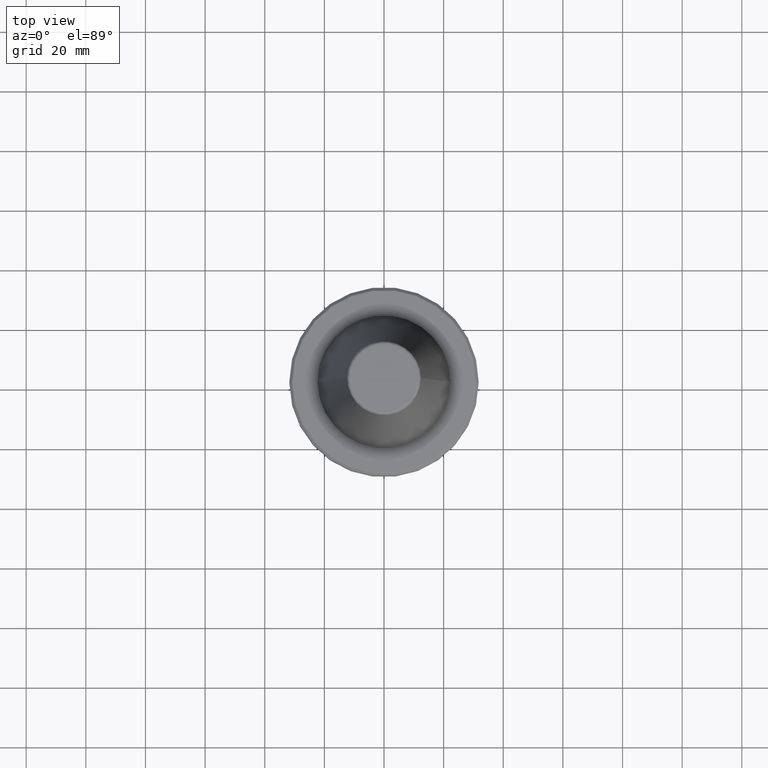
[diagram: clean part render]
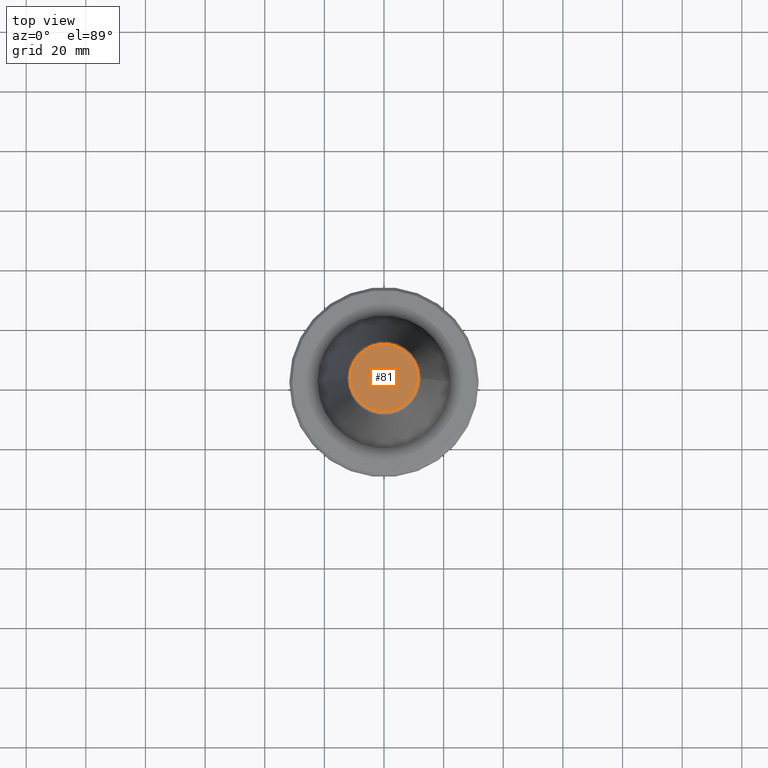
[diagram: same view with one face highlighted and labeled with its STEP entity id]
A machine part, top view. The second image highlights one B-rep face of the part: STEP entity #81.
In plain terms, the highlighted planar face has unit normal (0, -0, 1).
Its self-contained STEP definition (entity closure, byte-faithful):
#35 = FACE_OUTER_BOUND ( 'NONE', #1089, .T. ) ;
#81 = ADVANCED_FACE ( 'NONE', ( #35 ), #761, .T. ) ;
#112 = CARTESIAN_POINT ( 'NONE',  ( 11.38516258961893100, 0.0000000000000000000, 68.40000000000000600 ) ) ;
#120 = AXIS2_PLACEMENT_3D ( 'NONE', #293, #968, #977 ) ;
#135 = ORIENTED_EDGE ( 'NONE', *, *, #482, .T. ) ;
#143 = CIRCLE ( 'NONE', #120, 11.38516258961893100 ) ;
#148 = CIRCLE ( 'NONE', #389, 11.38516258961893100 ) ;
#293 = CARTESIAN_POINT ( 'NONE',  ( 0.0000000000000000000, 0.0000000000000000000, 68.40000000000000600 ) ) ;
#305 = CARTESIAN_POINT ( 'NONE',  ( 0.0000000000000000000, 0.0000000000000000000, 68.40000000000000600 ) ) ;
#389 = AXIS2_PLACEMENT_3D ( 'NONE', #305, #559, #707 ) ;
#482 = EDGE_CURVE ( 'NONE', #915, #701, #143, .T. ) ;
#555 = CARTESIAN_POINT ( 'NONE',  ( 0.0000000000000000000, -8.337524199435086500E-014, 68.39999999999999100 ) ) ;
#559 = DIRECTION ( 'NONE',  ( -0.0000000000000000000, -0.0000000000000000000, 1.000000000000000000 ) ) ;
#594 = AXIS2_PLACEMENT_3D ( 'NONE', #555, #940, #840 ) ;
#701 = VERTEX_POINT ( 'NONE', #704 ) ;
#704 = CARTESIAN_POINT ( 'NONE',  ( -11.38516258961893100, 1.454871700296352000E-015, 68.40000000000000600 ) ) ;
#707 = DIRECTION ( 'NONE',  ( 1.000000000000000000, 0.0000000000000000000, 0.0000000000000000000 ) ) ;
#761 = PLANE ( 'NONE',  #594 ) ;
#840 = DIRECTION ( 'NONE',  ( 1.000000000000000000, 0.0000000000000000000, 0.0000000000000000000 ) ) ;
#915 = VERTEX_POINT ( 'NONE', #112 ) ;
#940 = DIRECTION ( 'NONE',  ( 0.0000000000000000000, -0.0000000000000000000, 1.000000000000000000 ) ) ;
#968 = DIRECTION ( 'NONE',  ( -0.0000000000000000000, -0.0000000000000000000, 1.000000000000000000 ) ) ;
#977 = DIRECTION ( 'NONE',  ( 1.000000000000000000, 0.0000000000000000000, 0.0000000000000000000 ) ) ;
#1020 = EDGE_CURVE ( 'NONE', #701, #915, #148, .T. ) ;
#1089 = EDGE_LOOP ( 'NONE', ( #135, #1209 ) ) ;
#1209 = ORIENTED_EDGE ( 'NONE', *, *, #1020, .T. ) ;